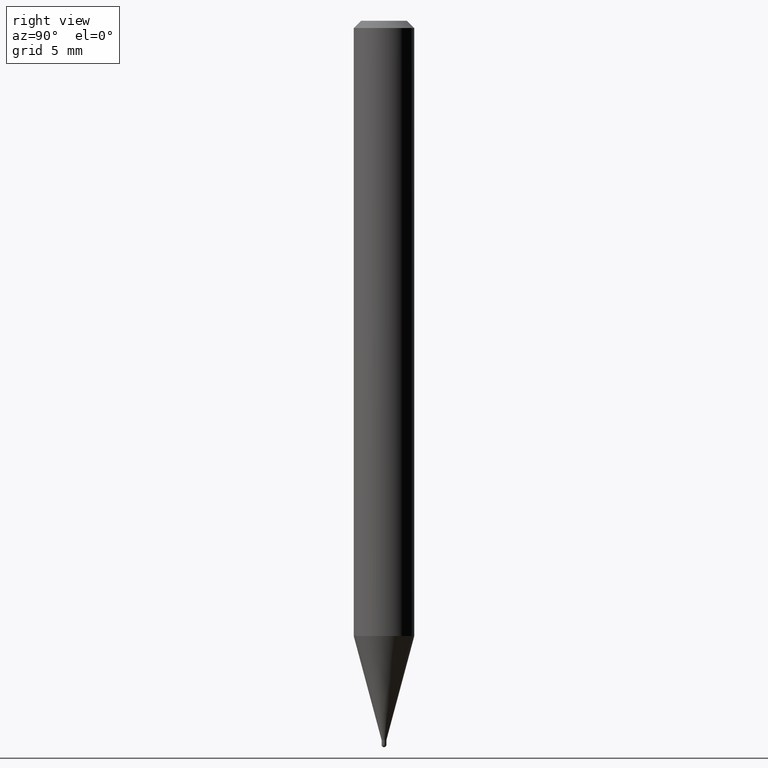
[diagram: clean part render]
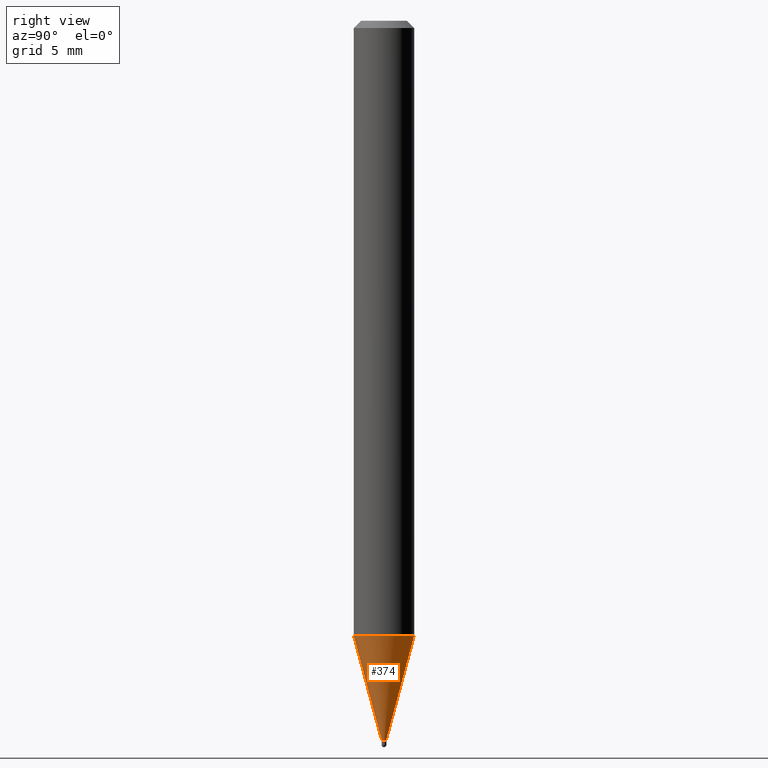
[diagram: same view with one face highlighted and labeled with its STEP entity id]
A machine part, right view. The second image highlights one B-rep face of the part: STEP entity #374.
In plain terms, the highlighted conical surface has half-angle 15 deg.
Its self-contained STEP definition (entity closure, byte-faithful):
#7 = CARTESIAN_POINT ( 'NONE',  ( 3.552713678803991097E-17, 0.004999999999994617257, -1.485000000000000098 ) ) ;
#11 = CIRCLE ( 'NONE', #389, 0.004999999999999800611 ) ;
#23 = DIRECTION ( 'NONE',  ( -2.446180720103943212E-29, 3.490461837591790659E-15, 1.000000000000000000 ) ) ;
#25 = DIRECTION ( 'NONE',  ( -1.807323732225379838E-15, -0.2588190451025252914, 0.9659258262890670910 ) ) ;
#28 = AXIS2_PLACEMENT_3D ( 'NONE', #48, #23, #462 ) ;
#37 = CARTESIAN_POINT ( 'NONE',  ( -4.364351673553606573E-16, -0.06250000000000444089, -1.270407078564795622 ) ) ;
#48 = CARTESIAN_POINT ( 'NONE',  ( 3.632578369354356333E-29, -5.183335828823809468E-15, -1.485000000000000098 ) ) ;
#49 = ORIENTED_EDGE ( 'NONE', *, *, #192, .T. ) ;
#70 = VERTEX_POINT ( 'NONE', #470 ) ;
#83 = VECTOR ( 'NONE', #118, 39.37007874015748854 ) ;
#85 = AXIS2_PLACEMENT_3D ( 'NONE', #291, #428, #149 ) ;
#118 = DIRECTION ( 'NONE',  ( 1.839019923739650408E-15, 0.2588190451025320082, 0.9659258262890650926 ) ) ;
#134 = VERTEX_POINT ( 'NONE', #157 ) ;
#149 = DIRECTION ( 'NONE',  ( -6.982962677686265922E-15, -1.000000000000000000, 4.370956789862821150E-15 ) ) ;
#157 = CARTESIAN_POINT ( 'NONE',  ( 4.440892098500935790E-16, 0.06249999999999556605, -1.270407078564796288 ) ) ;
#161 = VECTOR ( 'NONE', #25, 39.37007874015748143 ) ;
#180 = LINE ( 'NONE', #221, #161 ) ;
#192 = EDGE_CURVE ( 'NONE', #70, #134, #390, .T. ) ;
#197 = CIRCLE ( 'NONE', #85, 0.06250000000000000000 ) ;
#210 = DIRECTION ( 'NONE',  ( -6.982962677686265922E-15, -1.000000000000000000, 0.000000000000000000 ) ) ;
#219 = VERTEX_POINT ( 'NONE', #472 ) ;
#221 = CARTESIAN_POINT ( 'NONE',  ( -3.491481338839360505E-17, -0.005000000000004983097, -1.485000000000000098 ) ) ;
#229 = CONICAL_SURFACE ( 'NONE', #28, 0.004999999999999800611, 0.2617993877991576235 ) ;
#230 = ORIENTED_EDGE ( 'NONE', *, *, #346, .T. ) ;
#264 = DIRECTION ( 'NONE',  ( -2.446180720103943212E-29, 3.490461837591790659E-15, 1.000000000000000000 ) ) ;
#291 = CARTESIAN_POINT ( 'NONE',  ( 3.107645302268779211E-29, -4.434307425936895127E-15, -1.270407078564796066 ) ) ;
#293 = ORIENTED_EDGE ( 'NONE', *, *, #401, .F. ) ;
#329 = ORIENTED_EDGE ( 'NONE', *, *, #421, .F. ) ;
#346 = EDGE_CURVE ( 'NONE', #219, #70, #11, .T. ) ;
#365 = CARTESIAN_POINT ( 'NONE',  ( 3.632578369354356333E-29, -5.183335828823809468E-15, -1.485000000000000098 ) ) ;
#374 = ADVANCED_FACE ( 'NONE', ( #458 ), #229, .T. ) ;
#389 = AXIS2_PLACEMENT_3D ( 'NONE', #365, #264, #210 ) ;
#390 = LINE ( 'NONE', #7, #83 ) ;
#401 = EDGE_CURVE ( 'NONE', #219, #446, #180, .T. ) ;
#421 = EDGE_CURVE ( 'NONE', #446, #134, #197, .T. ) ;
#428 = DIRECTION ( 'NONE',  ( -2.446180720103943212E-29, 3.490461837591790659E-15, 1.000000000000000000 ) ) ;
#446 = VERTEX_POINT ( 'NONE', #37 ) ;
#458 = FACE_OUTER_BOUND ( 'NONE', #494, .T. ) ;
#462 = DIRECTION ( 'NONE',  ( -6.982962677686265922E-15, -1.000000000000000000, 0.000000000000000000 ) ) ;
#470 = CARTESIAN_POINT ( 'NONE',  ( 2.398081733190669114E-16, 0.004999999999994617257, -1.485000000000000098 ) ) ;
#472 = CARTESIAN_POINT ( 'NONE',  ( -3.491481338839360505E-17, -0.005000000000004983097, -1.485000000000000098 ) ) ;
#494 = EDGE_LOOP ( 'NONE', ( #230, #49, #329, #293 ) ) ;